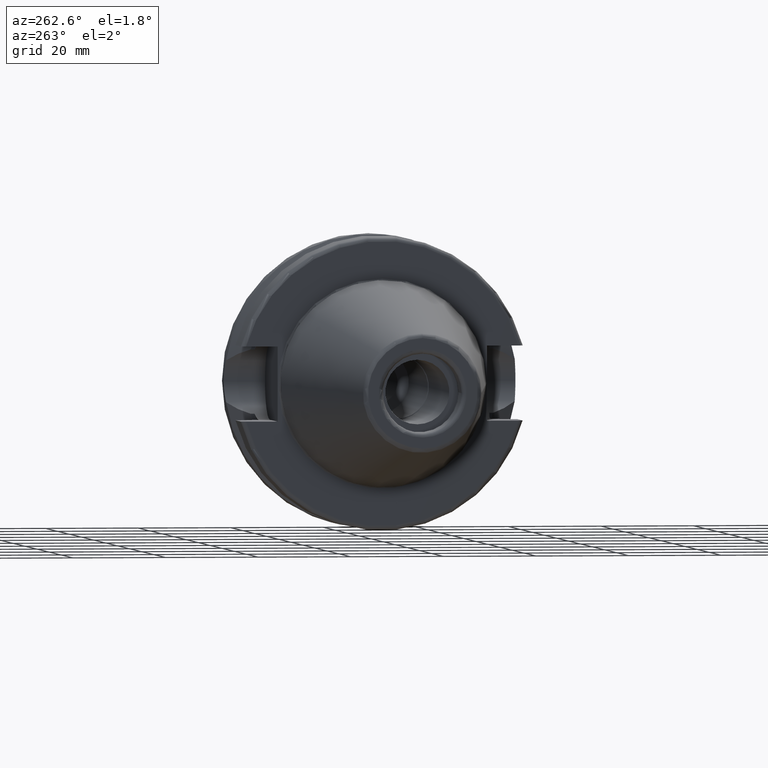
[diagram: clean part render]
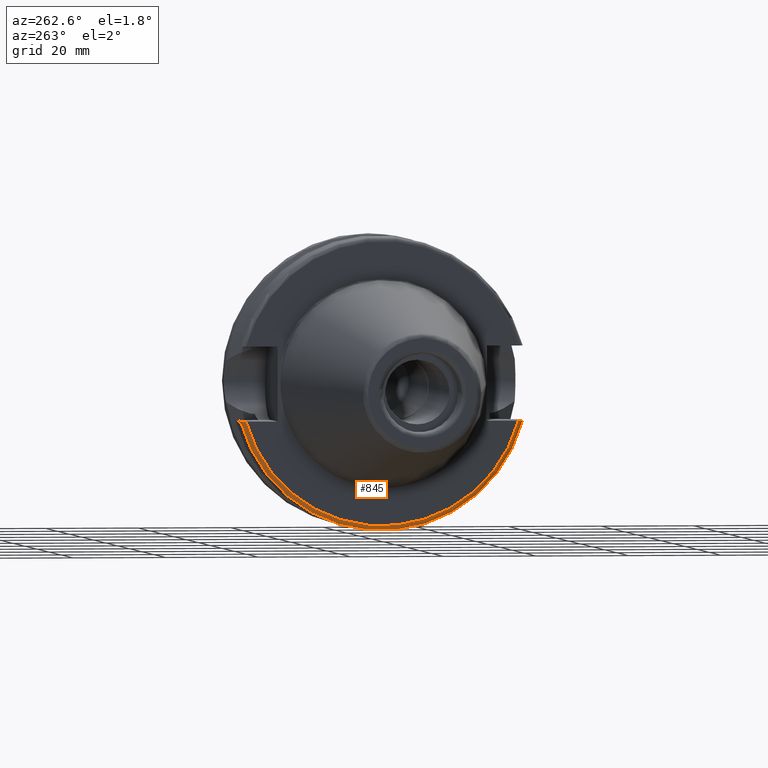
[diagram: same view with one face highlighted and labeled with its STEP entity id]
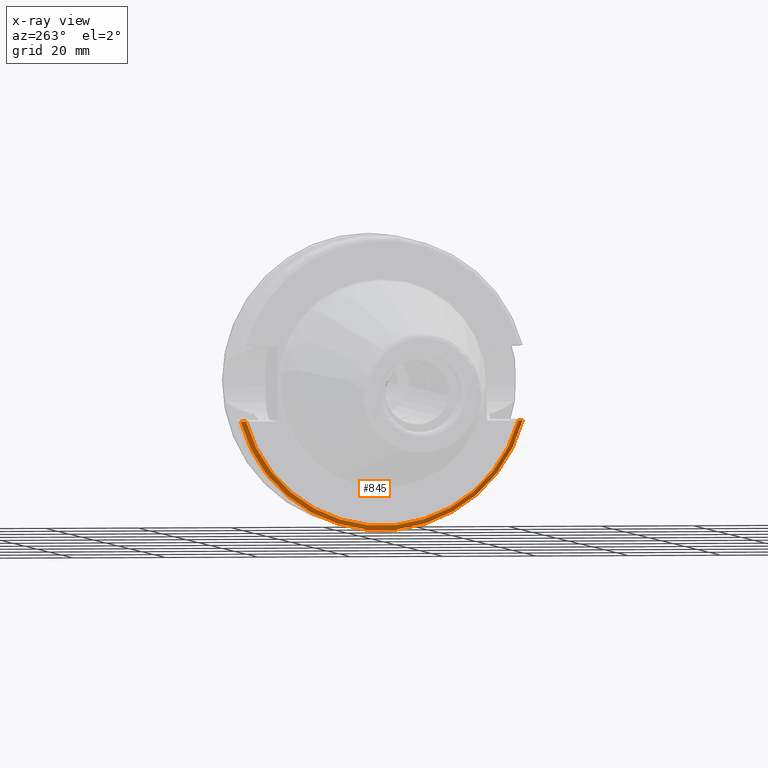
[diagram: x-ray of the same camera — body ghosted, the highlighted face saturated]
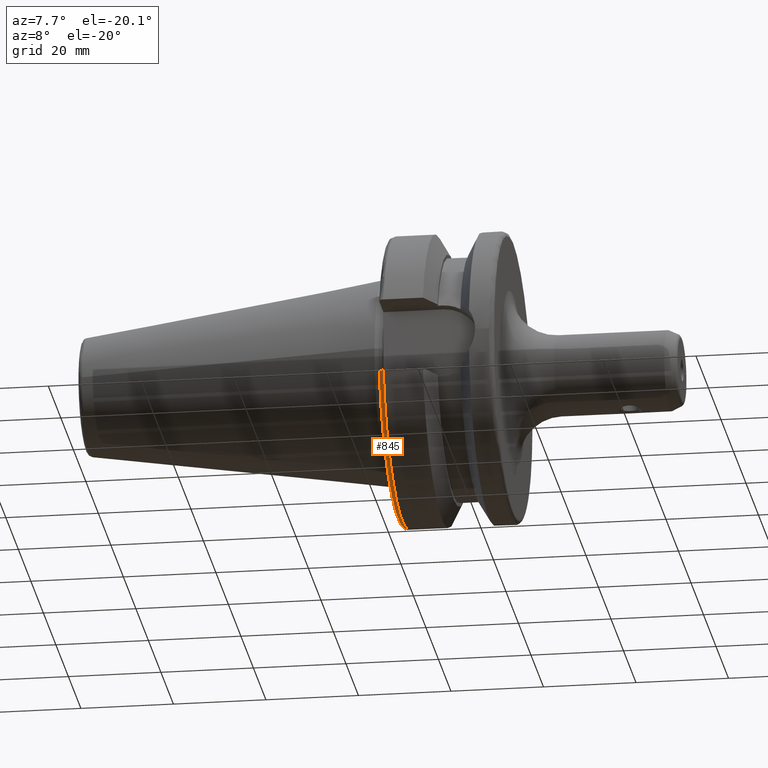
[diagram: same view with one face highlighted and labeled with its STEP entity id]
A machine part, auxiliary view. The second image highlights one B-rep face of the part: STEP entity #845.
The next image is the same camera in x-ray: the body ghosted, the highlighted face saturated — about 0% of this face is hidden behind the body in this view.
A second angle (auxiliary view) of the same face is appended — the face is thin or edge-on in the first view.
In plain terms, the highlighted toroidal blend (fillet) surface has major radius 30.5 mm and minor (blend) radius 1 mm.
Its self-contained STEP definition (entity closure, byte-faithful):
#47=TOROIDAL_SURFACE('',#947,30.5,1.00000000000001);
#88=CIRCLE('',#946,31.5);
#89=CIRCLE('',#948,30.5);
#158=FACE_OUTER_BOUND('',#213,.T.);
#213=EDGE_LOOP('',(#694,#695,#696,#697));
#252=B_SPLINE_CURVE_WITH_KNOTS('',3,(#1623,#1624,#1625,#1626,#1627,#1628,
#1629,#1630,#1631,#1632),.UNSPECIFIED.,.F.,.F.,(4,2,2,2,4),(0.,0.0366169489027566,
0.0738743445372396,0.111946181815504,0.150751871388631),.UNSPECIFIED.);
#256=B_SPLINE_CURVE_WITH_KNOTS('',3,(#1703,#1704,#1705,#1706,#1707,#1708,
#1709,#1710,#1711,#1712),.UNSPECIFIED.,.F.,.F.,(4,2,2,2,4),(-0.150751871388631,
-0.111946181815504,-0.0738743445372396,-0.0366169489027566,0.),
 .UNSPECIFIED.);
#395=VERTEX_POINT('',#1620);
#396=VERTEX_POINT('',#1622);
#409=VERTEX_POINT('',#1697);
#410=VERTEX_POINT('',#1701);
#491=EDGE_CURVE('',#396,#395,#252,.T.);
#513=EDGE_CURVE('',#396,#409,#88,.T.);
#515=EDGE_CURVE('',#395,#410,#89,.T.);
#516=EDGE_CURVE('',#410,#409,#256,.T.);
#694=ORIENTED_EDGE('',*,*,#491,.T.);
#695=ORIENTED_EDGE('',*,*,#515,.T.);
#696=ORIENTED_EDGE('',*,*,#516,.T.);
#697=ORIENTED_EDGE('',*,*,#513,.F.);
#845=ADVANCED_FACE('',(#158),#47,.T.);
#946=AXIS2_PLACEMENT_3D('',#1698,#1137,#1138);
#947=AXIS2_PLACEMENT_3D('',#1700,#1140,#1141);
#948=AXIS2_PLACEMENT_3D('',#1702,#1142,#1143);
#1137=DIRECTION('center_axis',(1.,0.,0.));
#1138=DIRECTION('ref_axis',(0.,0.,-1.));
#1140=DIRECTION('center_axis',(1.,0.,0.));
#1141=DIRECTION('ref_axis',(0.,0.,-1.));
#1142=DIRECTION('center_axis',(1.,0.,0.));
#1143=DIRECTION('ref_axis',(0.,0.,-1.));
#1620=CARTESIAN_POINT('',(1.99999999999999,-29.4184890842477,-8.05));
#1622=CARTESIAN_POINT('',(2.99999999999999,-30.4540227227866,-8.05));
#1623=CARTESIAN_POINT('Ctrl Pts',(3.,-30.4540227227866,-8.05));
#1624=CARTESIAN_POINT('Ctrl Pts',(2.87794350365748,-30.4540227227866,-8.05));
#1625=CARTESIAN_POINT('Ctrl Pts',(2.73442803339431,-30.4247631098996,-8.05));
#1626=CARTESIAN_POINT('Ctrl Pts',(2.50758665841081,-30.3289456947341,-8.05));
#1627=CARTESIAN_POINT('Ctrl Pts',(2.38465986426588,-30.2446912007727,-8.05));
#1628=CARTESIAN_POINT('Ctrl Pts',(2.2089547883793,-30.0653098968133,-8.05));
#1629=CARTESIAN_POINT('Ctrl Pts',(2.12587454939785,-29.9376810968085,-8.05));
#1630=CARTESIAN_POINT('Ctrl Pts',(2.02950258743517,-29.7002346307938,-8.05));
#1631=CARTESIAN_POINT('Ctrl Pts',(1.99999999999999,-29.5478413828248,-8.05));
#1632=CARTESIAN_POINT('Ctrl Pts',(1.99999999999999,-29.4184890842477,-8.05));
#1697=CARTESIAN_POINT('',(2.99999999999999,30.4540227227866,-8.05));
#1698=CARTESIAN_POINT('Origin',(2.99999999999999,0.,0.));
#1700=CARTESIAN_POINT('Origin',(3.,0.,0.));
#1701=CARTESIAN_POINT('',(1.99999999999999,29.4184890842477,-8.05));
#1702=CARTESIAN_POINT('Origin',(1.99999999999999,0.,0.));
#1703=CARTESIAN_POINT('Ctrl Pts',(1.99999999999999,29.4184890842477,-8.05));
#1704=CARTESIAN_POINT('Ctrl Pts',(1.99999999999999,29.5478413828248,-8.05));
#1705=CARTESIAN_POINT('Ctrl Pts',(2.02950258743517,29.7002346307938,-8.05));
#1706=CARTESIAN_POINT('Ctrl Pts',(2.12587454939785,29.9376810968085,-8.05));
#1707=CARTESIAN_POINT('Ctrl Pts',(2.2089547883793,30.0653098968133,-8.05));
#1708=CARTESIAN_POINT('Ctrl Pts',(2.38465986426588,30.2446912007727,-8.05));
#1709=CARTESIAN_POINT('Ctrl Pts',(2.50758665841081,30.3289456947341,-8.05));
#1710=CARTESIAN_POINT('Ctrl Pts',(2.73442803339431,30.4247631098996,-8.05));
#1711=CARTESIAN_POINT('Ctrl Pts',(2.87794350365748,30.4540227227866,-8.05));
#1712=CARTESIAN_POINT('Ctrl Pts',(3.,30.4540227227866,-8.05));